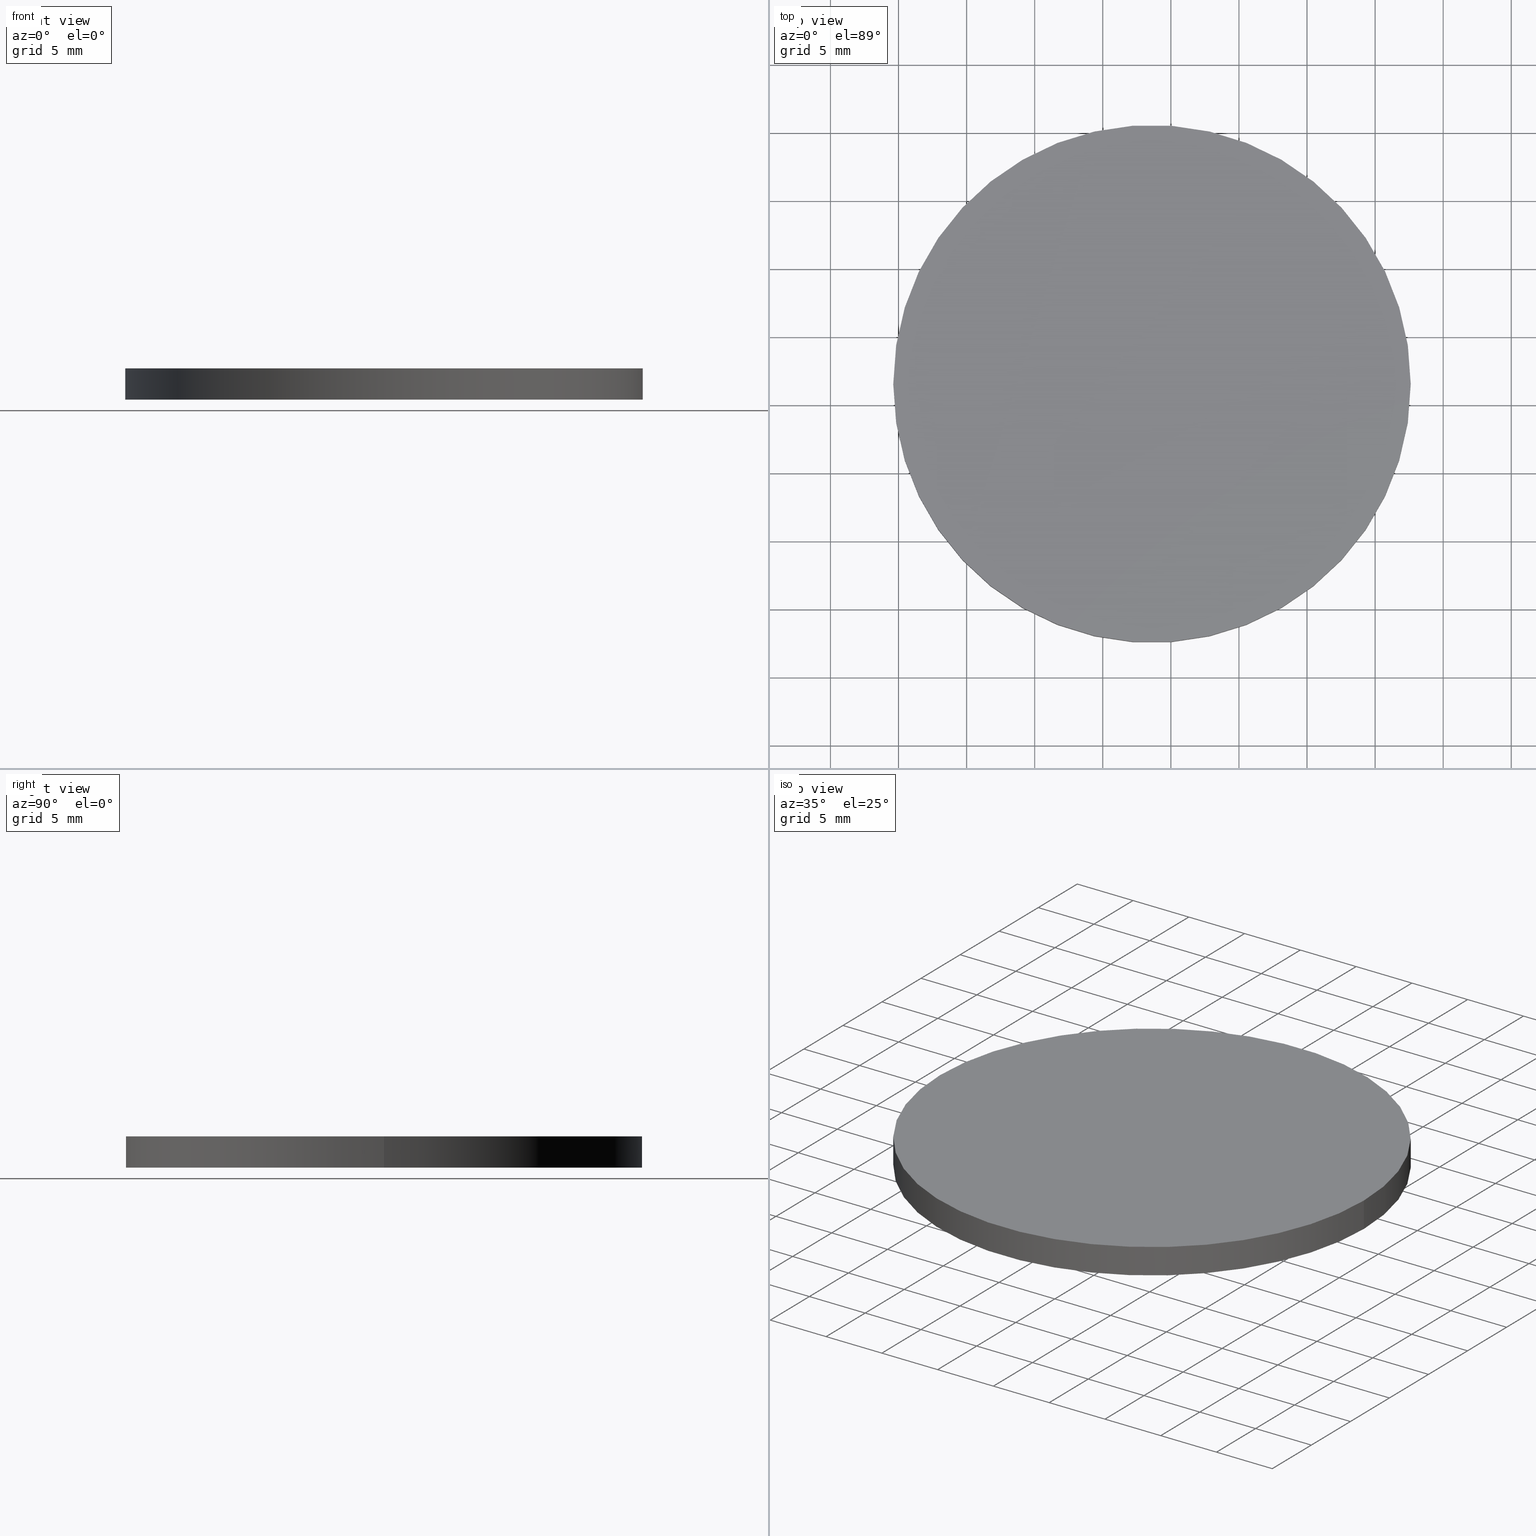
[diagram: canonical four-view strip — front | top / right | iso, engineering-drawing reading convention]
A machine part, canonical four-view strip (front | top / right | iso — engineering-drawing reading convention). The complete STEP part file that produces these views, byte-faithful:
ISO-10303-21;
HEADER;
FILE_DESCRIPTION (( 'STEP AP214' ),
    '1' );
FILE_NAME ('302522.STEP',
    '2019-08-13T06:50:26',
    ( '' ),
    ( '' ),
    'SwSTEP 2.0',
    'SolidWorks 2016',
    '' );
FILE_SCHEMA (( 'AUTOMOTIVE_DESIGN' ));
ENDSEC;

DATA;
#1 = ORIENTED_EDGE ( 'NONE', *, *, #14, .F. ) ;
#2 = FACE_OUTER_BOUND ( 'NONE', #26, .T. ) ;
#3 = CARTESIAN_POINT ( 'NONE',  ( 108.6149839422837000, 61.56557006861266500, 0.0000000000000000000 ) ) ;
#4 = VECTOR ( 'NONE', #96, 1000.000000000000000 ) ;
#5 =( LENGTH_UNIT ( ) NAMED_UNIT ( * ) SI_UNIT ( .MILLI., .METRE. ) );
#6 = PRODUCT_RELATED_PRODUCT_CATEGORY ( 'part', '', ( #18 ) ) ;
#7 = DIRECTION ( 'NONE',  ( 1.000000000000000000, 0.0000000000000000000, 0.0000000000000000000 ) ) ;
#8 = EDGE_CURVE ( 'NONE', #49, #131, #66, .T. ) ;
#9 = APPLICATION_CONTEXT ( 'automotive_design' ) ;
#10 = SURFACE_STYLE_FILL_AREA ( #75 ) ;
#11 = UNCERTAINTY_MEASURE_WITH_UNIT (LENGTH_MEASURE( 1.000000000000000100E-005 ), #72, 'distance_accuracy_value', 'NONE');
#12 = COLOUR_RGB ( '',1.000000000000000000, 1.000000000000000000, 1.000000000000000000 ) ;
#13 = PRESENTATION_STYLE_ASSIGNMENT (( #103 ) ) ;
#14 = EDGE_CURVE ( 'NONE', #49, #139, #59, .T. ) ;
#15 = DIRECTION ( 'NONE',  ( 0.0000000000000000000, 0.0000000000000000000, 1.000000000000000000 ) ) ;
#16 = FACE_OUTER_BOUND ( 'NONE', #23, .T. ) ;
#17 = PLANE ( 'NONE',  #39 ) ;
#18 = PRODUCT ( '302522', '302522', '', ( #127 ) ) ;
#19 = CARTESIAN_POINT ( 'NONE',  ( 89.61498394228370000, 61.56557006861266500, 2.299999999999999800 ) ) ;
#20 =( GEOMETRIC_REPRESENTATION_CONTEXT ( 3 ) GLOBAL_UNCERTAINTY_ASSIGNED_CONTEXT ( ( #11 ) ) GLOBAL_UNIT_ASSIGNED_CONTEXT ( ( #72, #40, #21 ) ) REPRESENTATION_CONTEXT ( 'NONE', 'WORKASPACE' ) );
#21 =( NAMED_UNIT ( * ) SI_UNIT ( $, .STERADIAN. ) SOLID_ANGLE_UNIT ( ) );
#22 = STYLED_ITEM ( 'NONE', ( #51 ), #35 ) ;
#23 = EDGE_LOOP ( 'NONE', ( #104, #74, #42, #25 ) ) ;
#24 = EDGE_LOOP ( 'NONE', ( #88, #130, #43, #1 ) ) ;
#25 = ORIENTED_EDGE ( 'NONE', *, *, #111, .T. ) ;
#26 = EDGE_LOOP ( 'NONE', ( #92, #107 ) ) ;
#27 = DIRECTION ( 'NONE',  ( 1.000000000000000000, 0.0000000000000000000, 0.0000000000000000000 ) ) ;
#28 = DIRECTION ( 'NONE',  ( -0.0000000000000000000, -0.0000000000000000000, -1.000000000000000000 ) ) ;
#29 = AXIS2_PLACEMENT_3D ( 'NONE', #126, #76, #99 ) ;
#30 = FACE_OUTER_BOUND ( 'NONE', #24, .T. ) ;
#31 = APPLICATION_PROTOCOL_DEFINITION ( 'draft international standard', 'automotive_design', 1998, #97 ) ;
#32 = ADVANCED_FACE ( 'NONE', ( #16 ), #78, .T. ) ;
#33 = APPLICATION_PROTOCOL_DEFINITION ( 'draft international standard', 'automotive_design', 1998, #9 ) ;
#34 = VECTOR ( 'NONE', #38, 1000.000000000000000 ) ;
#35 = ADVANCED_BREP_SHAPE_REPRESENTATION ( '302522', ( #135, #29 ), #100 ) ;
#36 = DIRECTION ( 'NONE',  ( 0.0000000000000000000, 0.0000000000000000000, 1.000000000000000000 ) ) ;
#37 = FACE_OUTER_BOUND ( 'NONE', #120, .T. ) ;
#38 = DIRECTION ( 'NONE',  ( -0.0000000000000000000, -0.0000000000000000000, -1.000000000000000000 ) ) ;
#39 = AXIS2_PLACEMENT_3D ( 'NONE', #3, #70, #116 ) ;
#40 =( NAMED_UNIT ( * ) PLANE_ANGLE_UNIT ( ) SI_UNIT ( $, .RADIAN. ) );
#41 = ADVANCED_FACE ( 'NONE', ( #37 ), #17, .F. ) ;
#42 = ORIENTED_EDGE ( 'NONE', *, *, #14, .T. ) ;
#43 = ORIENTED_EDGE ( 'NONE', *, *, #63, .T. ) ;
#44 = PRODUCT_DEFINITION_CONTEXT ( 'detailed design', #97, 'design' ) ;
#45 =( GEOMETRIC_REPRESENTATION_CONTEXT ( 3 ) GLOBAL_UNCERTAINTY_ASSIGNED_CONTEXT ( ( #80 ) ) GLOBAL_UNIT_ASSIGNED_CONTEXT ( ( #5, #93, #83 ) ) REPRESENTATION_CONTEXT ( 'NONE', 'WORKASPACE' ) );
#46 = MECHANICAL_DESIGN_GEOMETRIC_PRESENTATION_REPRESENTATION (  '', ( #22 ), #20 ) ;
#47 = CARTESIAN_POINT ( 'NONE',  ( 89.61498394228370000, 61.56557006861266500, 0.0000000000000000000 ) ) ;
#48 = CARTESIAN_POINT ( 'NONE',  ( 89.61498394228370000, 61.56557006861266500, 2.299999999999999800 ) ) ;
#49 = VERTEX_POINT ( 'NONE', #48 ) ;
#50 = CARTESIAN_POINT ( 'NONE',  ( 108.6149839422837000, 61.56557006861266500, 2.299999999999999800 ) ) ;
#51 = PRESENTATION_STYLE_ASSIGNMENT (( #106 ) ) ;
#52 = DIRECTION ( 'NONE',  ( -0.0000000000000000000, -0.0000000000000000000, -1.000000000000000000 ) ) ;
#53 = AXIS2_PLACEMENT_3D ( 'NONE', #64, #15, #7 ) ;
#54 = ORIENTED_EDGE ( 'NONE', *, *, #63, .F. ) ;
#55 = AXIS2_PLACEMENT_3D ( 'NONE', #82, #132, #134 ) ;
#56 = CIRCLE ( 'NONE', #55, 18.99999999999998900 ) ;
#57 = AXIS2_PLACEMENT_3D ( 'NONE', #125, #62, #133 ) ;
#58 = AXIS2_PLACEMENT_3D ( 'NONE', #117, #36, #27 ) ;
#59 = LINE ( 'NONE', #19, #4 ) ;
#60 =( LENGTH_UNIT ( ) NAMED_UNIT ( * ) SI_UNIT ( .MILLI., .METRE. ) );
#61 = ADVANCED_FACE ( 'NONE', ( #2 ), #136, .T. ) ;
#62 = DIRECTION ( 'NONE',  ( 0.0000000000000000000, 0.0000000000000000000, 1.000000000000000000 ) ) ;
#63 = EDGE_CURVE ( 'NONE', #109, #139, #89, .T. ) ;
#64 = CARTESIAN_POINT ( 'NONE',  ( 108.6149839422837000, 61.56557006861266500, 0.0000000000000000000 ) ) ;
#65 = AXIS2_PLACEMENT_3D ( 'NONE', #114, #52, #81 ) ;
#66 = CIRCLE ( 'NONE', #58, 18.99999999999998900 ) ;
#67 = SHAPE_DEFINITION_REPRESENTATION ( #90, #35 ) ;
#68 = EDGE_CURVE ( 'NONE', #131, #109, #128, .T. ) ;
#69 = DIRECTION ( 'NONE',  ( -1.000000000000000000, 0.0000000000000000000, 0.0000000000000000000 ) ) ;
#70 = DIRECTION ( 'NONE',  ( 0.0000000000000000000, 0.0000000000000000000, 1.000000000000000000 ) ) ;
#71 = SURFACE_SIDE_STYLE ('',( #112 ) ) ;
#72 =( LENGTH_UNIT ( ) NAMED_UNIT ( * ) SI_UNIT ( .MILLI., .METRE. ) );
#73 = MECHANICAL_DESIGN_GEOMETRIC_PRESENTATION_REPRESENTATION (  '', ( #118 ), #45 ) ;
#74 = ORIENTED_EDGE ( 'NONE', *, *, #8, .F. ) ;
#75 = FILL_AREA_STYLE ('',( #121 ) ) ;
#76 = DIRECTION ( 'NONE',  ( 0.0000000000000000000, 0.0000000000000000000, 1.000000000000000000 ) ) ;
#77 = ORIENTED_EDGE ( 'NONE', *, *, #111, .F. ) ;
#78 = CYLINDRICAL_SURFACE ( 'NONE', #113, 18.99999999999998900 ) ;
#79 = CLOSED_SHELL ( 'NONE', ( #87, #32, #61, #41 ) ) ;
#80 = UNCERTAINTY_MEASURE_WITH_UNIT (LENGTH_MEASURE( 1.000000000000000100E-005 ), #5, 'distance_accuracy_value', 'NONE');
#81 = DIRECTION ( 'NONE',  ( -1.000000000000000000, 0.0000000000000000000, 0.0000000000000000000 ) ) ;
#82 = CARTESIAN_POINT ( 'NONE',  ( 108.6149839422837000, 61.56557006861266500, 0.0000000000000000000 ) ) ;
#83 =( NAMED_UNIT ( * ) SI_UNIT ( $, .STERADIAN. ) SOLID_ANGLE_UNIT ( ) );
#84 = PRESENTATION_LAYER_ASSIGNMENT (  '', '', ( #22 ) ) ;
#85 = CARTESIAN_POINT ( 'NONE',  ( 108.6149839422837000, 61.56557006861266500, 2.299999999999999800 ) ) ;
#86 = CIRCLE ( 'NONE', #95, 18.99999999999998900 ) ;
#87 = ADVANCED_FACE ( 'NONE', ( #30 ), #140, .T. ) ;
#88 = ORIENTED_EDGE ( 'NONE', *, *, #108, .F. ) ;
#89 = CIRCLE ( 'NONE', #53, 18.99999999999998900 ) ;
#90 = PRODUCT_DEFINITION_SHAPE ( 'NONE', 'NONE',  #129 ) ;
#91 = CARTESIAN_POINT ( 'NONE',  ( 127.6149839422836900, 61.56557006861266500, 2.299999999999999800 ) ) ;
#92 = ORIENTED_EDGE ( 'NONE', *, *, #8, .T. ) ;
#93 =( NAMED_UNIT ( * ) PLANE_ANGLE_UNIT ( ) SI_UNIT ( $, .RADIAN. ) );
#94 = FILL_AREA_STYLE ('',( #124 ) ) ;
#95 = AXIS2_PLACEMENT_3D ( 'NONE', #50, #123, #115 ) ;
#96 = DIRECTION ( 'NONE',  ( -0.0000000000000000000, -0.0000000000000000000, -1.000000000000000000 ) ) ;
#97 = APPLICATION_CONTEXT ( 'automotive_design' ) ;
#98 =( NAMED_UNIT ( * ) PLANE_ANGLE_UNIT ( ) SI_UNIT ( $, .RADIAN. ) );
#99 = DIRECTION ( 'NONE',  ( 1.000000000000000000, 0.0000000000000000000, 0.0000000000000000000 ) ) ;
#100 =( GEOMETRIC_REPRESENTATION_CONTEXT ( 3 ) GLOBAL_UNCERTAINTY_ASSIGNED_CONTEXT ( ( #110 ) ) GLOBAL_UNIT_ASSIGNED_CONTEXT ( ( #60, #98, #138 ) ) REPRESENTATION_CONTEXT ( 'NONE', 'WORKASPACE' ) );
#101 = COLOUR_RGB ( '',1.000000000000000000, 1.000000000000000000, 1.000000000000000000 ) ;
#102 = CARTESIAN_POINT ( 'NONE',  ( 127.6149839422836900, 61.56557006861266500, 0.0000000000000000000 ) ) ;
#103 = SURFACE_STYLE_USAGE ( .BOTH. , #71 ) ;
#104 = ORIENTED_EDGE ( 'NONE', *, *, #68, .F. ) ;
#105 = PRODUCT_DEFINITION_FORMATION_WITH_SPECIFIED_SOURCE ( '�κ�', '', #18, .NOT_KNOWN. ) ;
#106 = SURFACE_STYLE_USAGE ( .BOTH. , #119 ) ;
#107 = ORIENTED_EDGE ( 'NONE', *, *, #108, .T. ) ;
#108 = EDGE_CURVE ( 'NONE', #131, #49, #86, .T. ) ;
#109 = VERTEX_POINT ( 'NONE', #102 ) ;
#110 = UNCERTAINTY_MEASURE_WITH_UNIT (LENGTH_MEASURE( 1.000000000000000100E-005 ), #60, 'distance_accuracy_value', 'NONE');
#111 = EDGE_CURVE ( 'NONE', #139, #109, #56, .T. ) ;
#112 = SURFACE_STYLE_FILL_AREA ( #94 ) ;
#113 = AXIS2_PLACEMENT_3D ( 'NONE', #85, #28, #69 ) ;
#114 = CARTESIAN_POINT ( 'NONE',  ( 108.6149839422837000, 61.56557006861266500, 2.299999999999999800 ) ) ;
#115 = DIRECTION ( 'NONE',  ( 1.000000000000000000, 0.0000000000000000000, 0.0000000000000000000 ) ) ;
#116 = DIRECTION ( 'NONE',  ( 1.000000000000000000, 0.0000000000000000000, -0.0000000000000000000 ) ) ;
#117 = CARTESIAN_POINT ( 'NONE',  ( 108.6149839422837000, 61.56557006861266500, 2.299999999999999800 ) ) ;
#118 = STYLED_ITEM ( 'NONE', ( #13 ), #135 ) ;
#119 = SURFACE_SIDE_STYLE ('',( #10 ) ) ;
#120 = EDGE_LOOP ( 'NONE', ( #77, #54 ) ) ;
#121 = FILL_AREA_STYLE_COLOUR ( '', #12 ) ;
#122 = PRESENTATION_LAYER_ASSIGNMENT (  '', '', ( #118 ) ) ;
#123 = DIRECTION ( 'NONE',  ( 0.0000000000000000000, 0.0000000000000000000, 1.000000000000000000 ) ) ;
#124 = FILL_AREA_STYLE_COLOUR ( '', #101 ) ;
#125 = CARTESIAN_POINT ( 'NONE',  ( 108.6149839422837000, 61.56557006861266500, 2.299999999999999800 ) ) ;
#126 = CARTESIAN_POINT ( 'NONE',  ( 0.0000000000000000000, 0.0000000000000000000, 0.0000000000000000000 ) ) ;
#127 = PRODUCT_CONTEXT ( 'NONE', #9, 'mechanical' ) ;
#128 = LINE ( 'NONE', #137, #34 ) ;
#129 = PRODUCT_DEFINITION ( 'δ֪', '', #105, #44 ) ;
#130 = ORIENTED_EDGE ( 'NONE', *, *, #68, .T. ) ;
#131 = VERTEX_POINT ( 'NONE', #91 ) ;
#132 = DIRECTION ( 'NONE',  ( 0.0000000000000000000, 0.0000000000000000000, 1.000000000000000000 ) ) ;
#133 = DIRECTION ( 'NONE',  ( 1.000000000000000000, 0.0000000000000000000, -0.0000000000000000000 ) ) ;
#134 = DIRECTION ( 'NONE',  ( 1.000000000000000000, 0.0000000000000000000, 0.0000000000000000000 ) ) ;
#135 = MANIFOLD_SOLID_BREP ( '͹̨-����1', #79 ) ;
#136 = PLANE ( 'NONE',  #57 ) ;
#137 = CARTESIAN_POINT ( 'NONE',  ( 127.6149839422836900, 61.56557006861266500, 2.299999999999999800 ) ) ;
#138 =( NAMED_UNIT ( * ) SI_UNIT ( $, .STERADIAN. ) SOLID_ANGLE_UNIT ( ) );
#139 = VERTEX_POINT ( 'NONE', #47 ) ;
#140 = CYLINDRICAL_SURFACE ( 'NONE', #65, 18.99999999999998900 ) ;
ENDSEC;
END-ISO-10303-21;
